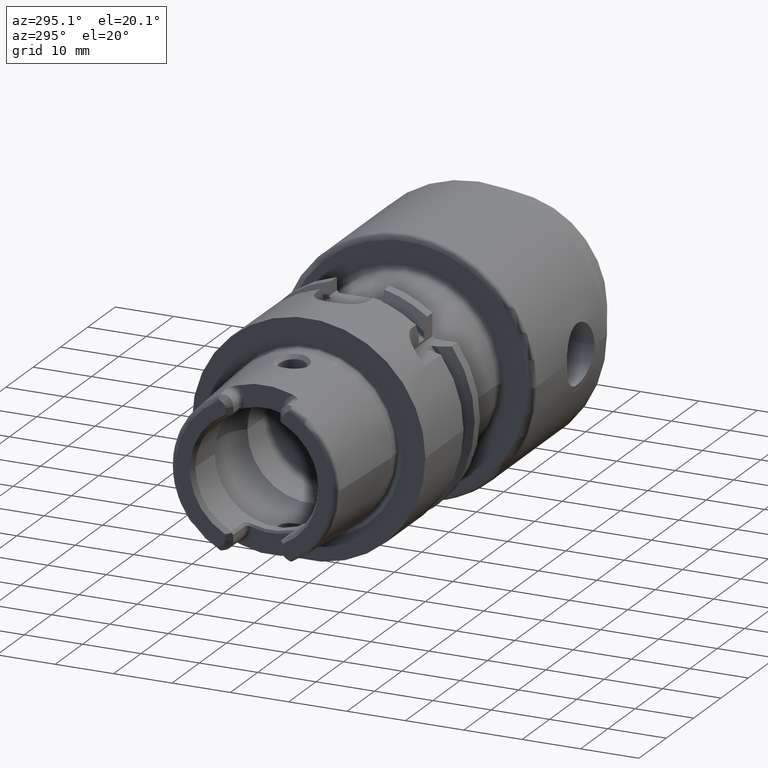
[diagram: clean part render]
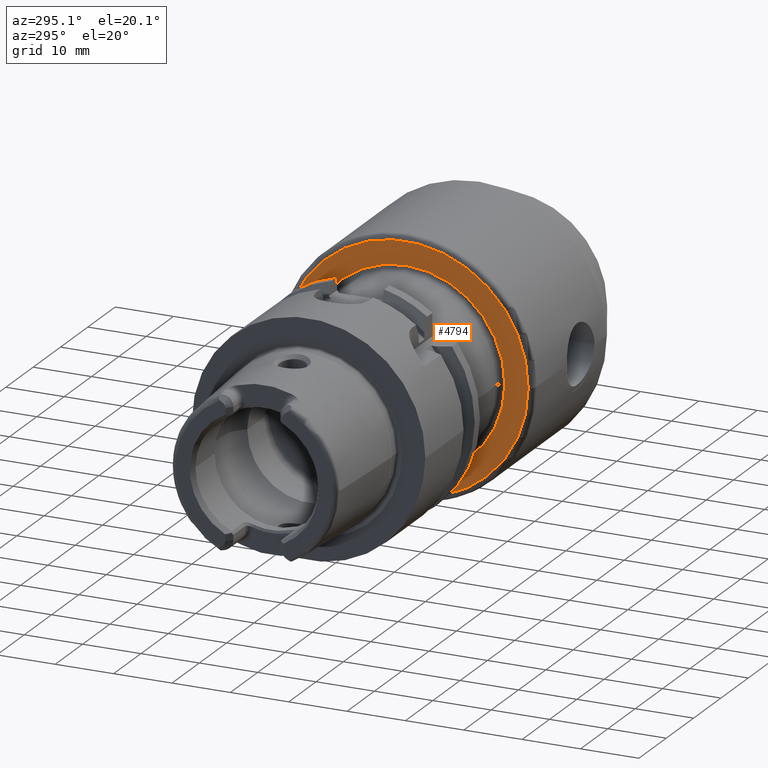
[diagram: same view with one face highlighted and labeled with its STEP entity id]
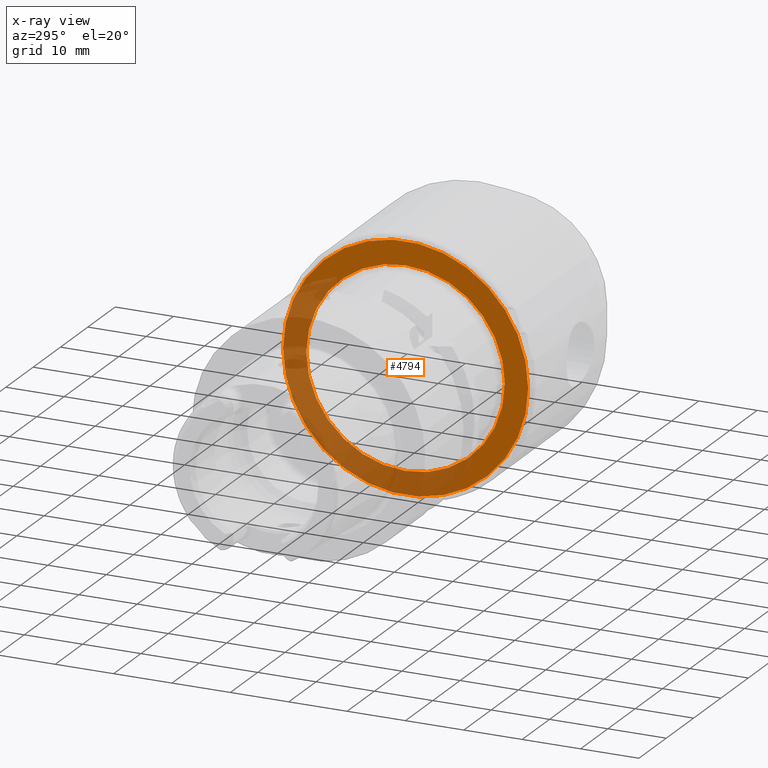
[diagram: x-ray of the same camera — body ghosted, the highlighted face saturated]
A machine part, auxiliary view. The second image highlights one B-rep face of the part: STEP entity #4794.
The next image is the same camera in x-ray: the body ghosted, the highlighted face saturated — about 45% of this face is hidden behind the body in this view.
In plain terms, the highlighted planar face has unit normal (1, 0, 0).
Its self-contained STEP definition (entity closure, byte-faithful):
#1312=CARTESIAN_POINT('',(3.545E1,0.E0,0.E0));
#1313=DIRECTION('',(-1.E0,0.E0,0.E0));
#1314=DIRECTION('',(0.E0,1.E0,0.E0));
#1315=AXIS2_PLACEMENT_3D('',#1312,#1313,#1314);
#1317=CARTESIAN_POINT('',(3.545E1,0.E0,0.E0));
#1318=DIRECTION('',(-1.E0,0.E0,0.E0));
#1319=DIRECTION('',(0.E0,-1.E0,0.E0));
#1320=AXIS2_PLACEMENT_3D('',#1317,#1318,#1319);
#1322=CARTESIAN_POINT('',(3.545E1,0.E0,0.E0));
#1323=DIRECTION('',(1.E0,0.E0,0.E0));
#1324=DIRECTION('',(0.E0,1.E0,0.E0));
#1325=AXIS2_PLACEMENT_3D('',#1322,#1323,#1324);
#1327=CARTESIAN_POINT('',(3.545E1,0.E0,0.E0));
#1328=DIRECTION('',(1.E0,0.E0,0.E0));
#1329=DIRECTION('',(0.E0,-1.E0,0.E0));
#1330=AXIS2_PLACEMENT_3D('',#1327,#1328,#1329);
#3417=CARTESIAN_POINT('',(3.545E1,1.7E1,0.E0));
#3418=CARTESIAN_POINT('',(3.545E1,-1.7E1,0.E0));
#3419=VERTEX_POINT('',#3417);
#3420=VERTEX_POINT('',#3418);
#3429=CARTESIAN_POINT('',(3.545E1,2.1E1,0.E0));
#3430=CARTESIAN_POINT('',(3.545E1,-2.1E1,0.E0));
#3431=VERTEX_POINT('',#3429);
#3432=VERTEX_POINT('',#3430);
#4778=CARTESIAN_POINT('',(3.545E1,0.E0,0.E0));
#4779=DIRECTION('',(1.E0,0.E0,0.E0));
#4780=DIRECTION('',(0.E0,-1.E0,0.E0));
#4781=AXIS2_PLACEMENT_3D('',#4778,#4779,#4780);
#4782=PLANE('',#4781);
#4784=ORIENTED_EDGE('',*,*,#4783,.T.);
#4786=ORIENTED_EDGE('',*,*,#4785,.T.);
#4787=EDGE_LOOP('',(#4784,#4786));
#4788=FACE_OUTER_BOUND('',#4787,.F.);
#4789=ORIENTED_EDGE('',*,*,#4768,.T.);
#4791=ORIENTED_EDGE('',*,*,#4790,.T.);
#4792=EDGE_LOOP('',(#4789,#4791));
#4793=FACE_BOUND('',#4792,.F.);
#4794=ADVANCED_FACE('',(#4788,#4793),#4782,.F.);
#1316=CIRCLE('',#1315,1.7E1);
#1321=CIRCLE('',#1320,1.7E1);
#1326=CIRCLE('',#1325,2.1E1);
#1331=CIRCLE('',#1330,2.1E1);
#4768=EDGE_CURVE('',#3419,#3420,#1316,.T.);
#4783=EDGE_CURVE('',#3431,#3432,#1326,.T.);
#4785=EDGE_CURVE('',#3432,#3431,#1331,.T.);
#4790=EDGE_CURVE('',#3420,#3419,#1321,.T.);